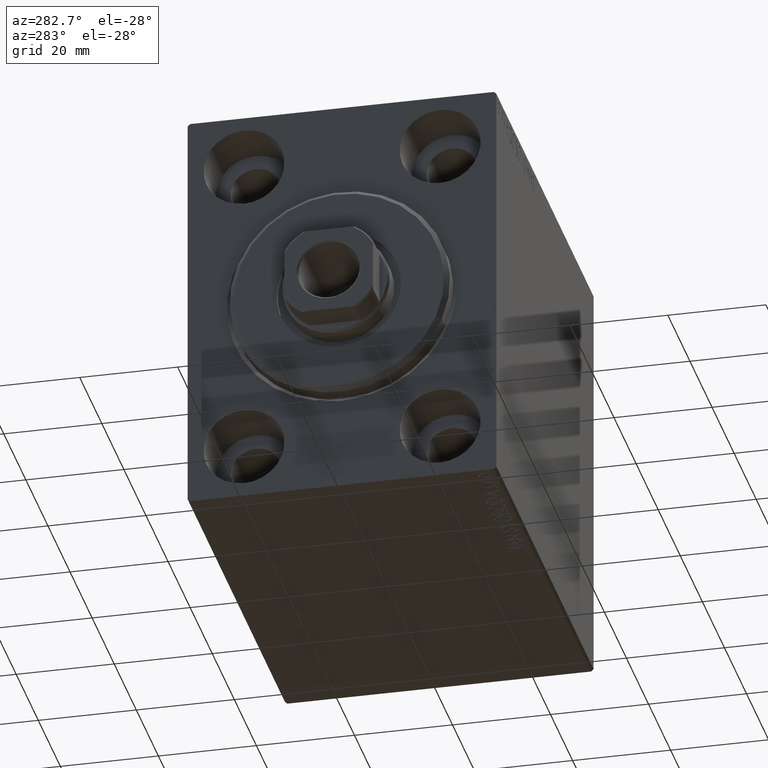
[diagram: clean part render]
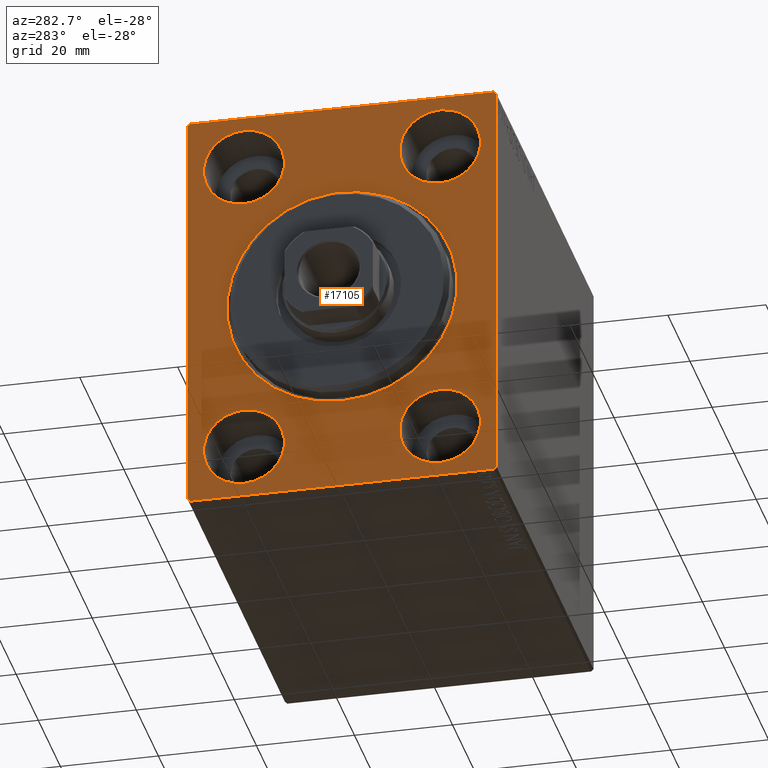
[diagram: same view with one face highlighted and labeled with its STEP entity id]
A machine part, auxiliary view. The second image highlights one B-rep face of the part: STEP entity #17105.
In plain terms, the highlighted planar face has unit normal (1, 0, 0).
Its self-contained STEP definition (entity closure, byte-faithful):
#176 = DIRECTION ( 'NONE',  ( 1.000000000000000000, 0.000000000000000000, 0.000000000000000000 ) ) ;
#1697 = DIRECTION ( 'NONE',  ( 0.000000000000000000, 0.000000000000000000, 1.000000000000000000 ) ) ;
#1768 = AXIS2_PLACEMENT_3D ( 'NONE', #10957, #38401, #24463 ) ;
#2037 = CARTESIAN_POINT ( 'NONE',  ( 0.000000000000000000, 20.00000000000000355, 31.50000000000000000 ) ) ;
#2145 = PLANE ( 'NONE',  #26042 ) ;
#2164 = DIRECTION ( 'NONE',  ( 0.000000000000000000, 0.000000000000000000, 1.000000000000000000 ) ) ;
#2196 = ORIENTED_EDGE ( 'NONE', *, *, #34296, .T. ) ;
#2448 = CARTESIAN_POINT ( 'NONE',  ( 0.000000000000000000, 31.00000000000002842, -42.50000000000000711 ) ) ;
#2903 = CARTESIAN_POINT ( 'NONE',  ( 0.000000000000000000, 19.99999999999999645, -31.49999999999999289 ) ) ;
#3077 = LINE ( 'NONE', #41533, #21910 ) ;
#3459 = DIRECTION ( 'NONE',  ( -0.000000000000000000, 0.7071067811865474617, -0.7071067811865474617 ) ) ;
#4215 = CIRCLE ( 'NONE', #41670, 23.49999999999998934 ) ;
#4461 = CARTESIAN_POINT ( 'NONE',  ( 0.000000000000000000, -19.99999999999999645, 39.74999999999999289 ) ) ;
#4537 = VERTEX_POINT ( 'NONE', #31828 ) ;
#5364 = VECTOR ( 'NONE', #32567, 1000.000000000000000 ) ;
#5828 = ORIENTED_EDGE ( 'NONE', *, *, #32714, .T. ) ;
#5896 = FACE_BOUND ( 'NONE', #42490, .T. ) ;
#5922 = VERTEX_POINT ( 'NONE', #27533 ) ;
#6210 = AXIS2_PLACEMENT_3D ( 'NONE', #35088, #8090, #1697 ) ;
#6236 = ORIENTED_EDGE ( 'NONE', *, *, #29501, .F. ) ;
#6342 = EDGE_LOOP ( 'NONE', ( #6937, #10735 ) ) ;
#6715 = AXIS2_PLACEMENT_3D ( 'NONE', #13859, #176, #37110 ) ;
#6741 = CARTESIAN_POINT ( 'NONE',  ( 0.000000000000000000, -19.99999999999999645, 23.25000000000000355 ) ) ;
#6937 = ORIENTED_EDGE ( 'NONE', *, *, #38226, .F. ) ;
#6977 = VECTOR ( 'NONE', #21931, 1000.000000000000000 ) ;
#7408 = CARTESIAN_POINT ( 'NONE',  ( 0.000000000000000000, 30.99999999999998579, 42.50000000000000711 ) ) ;
#7517 = AXIS2_PLACEMENT_3D ( 'NONE', #2903, #12615, #40266 ) ;
#7913 = CARTESIAN_POINT ( 'NONE',  ( 0.000000000000000000, 31.50000000000001421, -42.00000000000000711 ) ) ;
#8090 = DIRECTION ( 'NONE',  ( -1.000000000000000000, 0.000000000000000000, 0.000000000000000000 ) ) ;
#8432 = CARTESIAN_POINT ( 'NONE',  ( 0.000000000000000000, -31.00000000000000000, -42.50000000000000711 ) ) ;
#8633 = CARTESIAN_POINT ( 'NONE',  ( 0.000000000000000000, 31.50000000000000000, 41.99999999999999289 ) ) ;
#8881 = EDGE_CURVE ( 'NONE', #22785, #18701, #43501, .T. ) ;
#8993 = VECTOR ( 'NONE', #13251, 1000.000000000000000 ) ;
#9053 = EDGE_LOOP ( 'NONE', ( #10037, #2196 ) ) ;
#9224 = LINE ( 'NONE', #29358, #39330 ) ;
#9850 = FACE_BOUND ( 'NONE', #20030, .T. ) ;
#10007 = EDGE_CURVE ( 'NONE', #25694, #43077, #23151, .T. ) ;
#10037 = ORIENTED_EDGE ( 'NONE', *, *, #20992, .T. ) ;
#10735 = ORIENTED_EDGE ( 'NONE', *, *, #19412, .F. ) ;
#10957 = CARTESIAN_POINT ( 'NONE',  ( 0.000000000000000000, -20.00000000000000355, -31.49999999999999289 ) ) ;
#11095 = ORIENTED_EDGE ( 'NONE', *, *, #43399, .T. ) ;
#12313 = VECTOR ( 'NONE', #25174, 1000.000000000000000 ) ;
#12459 = EDGE_CURVE ( 'NONE', #22785, #32300, #43576, .T. ) ;
#12615 = DIRECTION ( 'NONE',  ( -1.000000000000000000, 0.000000000000000000, 0.000000000000000000 ) ) ;
#12892 = DIRECTION ( 'NONE',  ( 0.000000000000000000, 0.000000000000000000, -1.000000000000000000 ) ) ;
#13066 = VERTEX_POINT ( 'NONE', #2448 ) ;
#13251 = DIRECTION ( 'NONE',  ( 0.000000000000000000, -1.000000000000000000, -2.202823461557850341E-16 ) ) ;
#13859 = CARTESIAN_POINT ( 'NONE',  ( 0.000000000000000000, 0.000000000000000000, 0.000000000000000000 ) ) ;
#14313 = ORIENTED_EDGE ( 'NONE', *, *, #32911, .F. ) ;
#14462 = ORIENTED_EDGE ( 'NONE', *, *, #16456, .T. ) ;
#14842 = LINE ( 'NONE', #8432, #6977 ) ;
#14843 = EDGE_LOOP ( 'NONE', ( #14313, #34913 ) ) ;
#15220 = AXIS2_PLACEMENT_3D ( 'NONE', #40494, #43391, #42960 ) ;
#15248 = VERTEX_POINT ( 'NONE', #40962 ) ;
#16354 = VERTEX_POINT ( 'NONE', #22365 ) ;
#16456 = EDGE_CURVE ( 'NONE', #21402, #39217, #14842, .T. ) ;
#16587 = ORIENTED_EDGE ( 'NONE', *, *, #12459, .F. ) ;
#16717 = CIRCLE ( 'NONE', #42149, 8.249999999999992895 ) ;
#17105 = ADVANCED_FACE ( 'NONE', ( #39293, #19814, #5896, #9850, #32877, #29553 ), #2145, .F. ) ;
#17625 = CARTESIAN_POINT ( 'NONE',  ( 0.000000000000000000, 19.99999999999999645, -23.24999999999999289 ) ) ;
#18093 = CIRCLE ( 'NONE', #36497, 8.249999999999992895 ) ;
#18609 = DIRECTION ( 'NONE',  ( -1.000000000000000000, 0.000000000000000000, 0.000000000000000000 ) ) ;
#18701 = VERTEX_POINT ( 'NONE', #8633 ) ;
#18826 = DIRECTION ( 'NONE',  ( -1.000000000000000000, 0.000000000000000000, 0.000000000000000000 ) ) ;
#19031 = CIRCLE ( 'NONE', #36697, 8.250000000000000000 ) ;
#19343 = VECTOR ( 'NONE', #38262, 1000.000000000000000 ) ;
#19412 = EDGE_CURVE ( 'NONE', #4537, #40422, #19031, .T. ) ;
#19461 = CARTESIAN_POINT ( 'NONE',  ( 0.000000000000000000, 20.00000000000000355, 39.74999999999999289 ) ) ;
#19472 = CARTESIAN_POINT ( 'NONE',  ( 0.000000000000000000, 19.99999999999999645, -31.49999999999999289 ) ) ;
#19814 = FACE_BOUND ( 'NONE', #6342, .T. ) ;
#20030 = EDGE_LOOP ( 'NONE', ( #34345, #34790 ) ) ;
#20992 = EDGE_CURVE ( 'NONE', #28354, #5922, #4215, .T. ) ;
#21402 = VERTEX_POINT ( 'NONE', #21664 ) ;
#21664 = CARTESIAN_POINT ( 'NONE',  ( 0.000000000000000000, -31.00000000000000000, -42.50000000000000711 ) ) ;
#21812 = CARTESIAN_POINT ( 'NONE',  ( 0.000000000000000000, -20.00000000000000355, -39.74999999999999289 ) ) ;
#21910 = VECTOR ( 'NONE', #37353, 1000.000000000000000 ) ;
#21931 = DIRECTION ( 'NONE',  ( -0.000000000000000000, -0.7071067811865573427, 0.7071067811865378028 ) ) ;
#22365 = CARTESIAN_POINT ( 'NONE',  ( 0.000000000000000000, -31.50000000000000000, 41.99999999999999289 ) ) ;
#22462 = EDGE_CURVE ( 'NONE', #21402, #13066, #3077, .T. ) ;
#22579 = DIRECTION ( 'NONE',  ( -1.000000000000000000, 0.000000000000000000, 0.000000000000000000 ) ) ;
#22785 = VERTEX_POINT ( 'NONE', #7408 ) ;
#22929 = CARTESIAN_POINT ( 'NONE',  ( 0.000000000000000000, -19.99999999999999645, 31.50000000000000000 ) ) ;
#23151 = CIRCLE ( 'NONE', #6210, 8.249999999999992895 ) ;
#23363 = DIRECTION ( 'NONE',  ( -1.000000000000000000, 0.000000000000000000, 0.000000000000000000 ) ) ;
#23410 = CARTESIAN_POINT ( 'NONE',  ( 0.000000000000000000, 20.00000000000000355, 23.25000000000000355 ) ) ;
#23879 = ORIENTED_EDGE ( 'NONE', *, *, #8881, .T. ) ;
#24091 = CARTESIAN_POINT ( 'NONE',  ( 0.000000000000000000, -31.50000000000000000, -42.00000000000002132 ) ) ;
#24430 = EDGE_CURVE ( 'NONE', #39828, #36829, #30511, .T. ) ;
#24463 = DIRECTION ( 'NONE',  ( 0.000000000000000000, 0.000000000000000000, 1.000000000000000000 ) ) ;
#25174 = DIRECTION ( 'NONE',  ( 0.000000000000000000, -0.7071067811865378028, -0.7071067811865573427 ) ) ;
#25694 = VERTEX_POINT ( 'NONE', #23410 ) ;
#26042 = AXIS2_PLACEMENT_3D ( 'NONE', #43055, #39512, #43271 ) ;
#26106 = ORIENTED_EDGE ( 'NONE', *, *, #22462, .F. ) ;
#26469 = CIRCLE ( 'NONE', #1768, 8.250000000000000000 ) ;
#27060 = ORIENTED_EDGE ( 'NONE', *, *, #24430, .F. ) ;
#27281 = CIRCLE ( 'NONE', #7517, 8.250000000000000000 ) ;
#27428 = LINE ( 'NONE', #37612, #19343 ) ;
#27533 = CARTESIAN_POINT ( 'NONE',  ( 0.000000000000000000, 2.877919977996279137E-15, -23.49999999999998934 ) ) ;
#28354 = VERTEX_POINT ( 'NONE', #32933 ) ;
#29358 = CARTESIAN_POINT ( 'NONE',  ( 0.000000000000000000, -31.50000000000000000, 41.99999999999999289 ) ) ;
#29501 = EDGE_CURVE ( 'NONE', #15248, #18701, #27428, .T. ) ;
#29540 = CARTESIAN_POINT ( 'NONE',  ( 0.000000000000000000, -20.00000000000000355, -23.24999999999999289 ) ) ;
#29553 = FACE_OUTER_BOUND ( 'NONE', #38507, .T. ) ;
#29719 = CARTESIAN_POINT ( 'NONE',  ( 0.000000000000000000, 0.000000000000000000, 0.000000000000000000 ) ) ;
#29750 = CARTESIAN_POINT ( 'NONE',  ( 0.000000000000000000, -31.00000000000001421, 42.49999999999999289 ) ) ;
#29805 = ORIENTED_EDGE ( 'NONE', *, *, #40726, .F. ) ;
#30511 = CIRCLE ( 'NONE', #38290, 8.249999999999992895 ) ;
#30859 = CARTESIAN_POINT ( 'NONE',  ( 0.000000000000000000, 30.99999999999998579, 42.50000000000000711 ) ) ;
#31291 = ORIENTED_EDGE ( 'NONE', *, *, #41482, .F. ) ;
#31828 = CARTESIAN_POINT ( 'NONE',  ( 0.000000000000000000, 19.99999999999999645, -39.74999999999999289 ) ) ;
#31901 = CARTESIAN_POINT ( 'NONE',  ( 0.000000000000000000, -31.50000000000000000, 42.49999999999999289 ) ) ;
#32193 = CIRCLE ( 'NONE', #15220, 8.250000000000000000 ) ;
#32300 = VERTEX_POINT ( 'NONE', #29750 ) ;
#32567 = DIRECTION ( 'NONE',  ( 0.000000000000000000, 0.000000000000000000, -1.000000000000000000 ) ) ;
#32714 = EDGE_CURVE ( 'NONE', #15248, #13066, #38236, .T. ) ;
#32877 = FACE_BOUND ( 'NONE', #14843, .T. ) ;
#32911 = EDGE_CURVE ( 'NONE', #33107, #43619, #26469, .T. ) ;
#32933 = CARTESIAN_POINT ( 'NONE',  ( 0.000000000000000000, 0.000000000000000000, 23.49999999999998934 ) ) ;
#33107 = VERTEX_POINT ( 'NONE', #29540 ) ;
#34296 = EDGE_CURVE ( 'NONE', #5922, #28354, #42046, .T. ) ;
#34345 = ORIENTED_EDGE ( 'NONE', *, *, #38171, .F. ) ;
#34763 = DIRECTION ( 'NONE',  ( 0.000000000000000000, 0.000000000000000000, 1.000000000000000000 ) ) ;
#34790 = ORIENTED_EDGE ( 'NONE', *, *, #10007, .F. ) ;
#34913 = ORIENTED_EDGE ( 'NONE', *, *, #40922, .F. ) ;
#35088 = CARTESIAN_POINT ( 'NONE',  ( 0.000000000000000000, 20.00000000000000355, 31.50000000000000000 ) ) ;
#35436 = LINE ( 'NONE', #31901, #5364 ) ;
#35638 = CARTESIAN_POINT ( 'NONE',  ( 0.000000000000000000, -19.99999999999999645, 31.50000000000000000 ) ) ;
#36073 = DIRECTION ( 'NONE',  ( 0.000000000000000000, 0.000000000000000000, 1.000000000000000000 ) ) ;
#36276 = CARTESIAN_POINT ( 'NONE',  ( 0.000000000000000000, 31.50000000000000000, 42.50000000000000711 ) ) ;
#36497 = AXIS2_PLACEMENT_3D ( 'NONE', #22929, #23363, #2164 ) ;
#36697 = AXIS2_PLACEMENT_3D ( 'NONE', #19472, #22579, #36073 ) ;
#36829 = VERTEX_POINT ( 'NONE', #6741 ) ;
#37110 = DIRECTION ( 'NONE',  ( 0.000000000000000000, 0.000000000000000000, -1.000000000000000000 ) ) ;
#37353 = DIRECTION ( 'NONE',  ( 0.000000000000000000, 1.000000000000000000, 0.000000000000000000 ) ) ;
#37612 = CARTESIAN_POINT ( 'NONE',  ( 0.000000000000000000, 31.50000000000001421, -42.50000000000000711 ) ) ;
#38171 = EDGE_CURVE ( 'NONE', #43077, #25694, #16717, .T. ) ;
#38226 = EDGE_CURVE ( 'NONE', #40422, #4537, #27281, .T. ) ;
#38236 = LINE ( 'NONE', #7913, #12313 ) ;
#38262 = DIRECTION ( 'NONE',  ( 0.000000000000000000, -1.632680918566406300E-16, 1.000000000000000000 ) ) ;
#38290 = AXIS2_PLACEMENT_3D ( 'NONE', #35638, #18609, #34763 ) ;
#38401 = DIRECTION ( 'NONE',  ( -1.000000000000000000, 0.000000000000000000, 0.000000000000000000 ) ) ;
#38507 = EDGE_LOOP ( 'NONE', ( #29805, #11095, #16587, #23879, #6236, #5828, #26106, #14462 ) ) ;
#38660 = VECTOR ( 'NONE', #3459, 1000.000000000000114 ) ;
#39181 = DIRECTION ( 'NONE',  ( 0.000000000000000000, 0.000000000000000000, 1.000000000000000000 ) ) ;
#39217 = VERTEX_POINT ( 'NONE', #24091 ) ;
#39293 = FACE_BOUND ( 'NONE', #9053, .T. ) ;
#39330 = VECTOR ( 'NONE', #42638, 1000.000000000000000 ) ;
#39512 = DIRECTION ( 'NONE',  ( 1.000000000000000000, 0.000000000000000000, 0.000000000000000000 ) ) ;
#39828 = VERTEX_POINT ( 'NONE', #4461 ) ;
#40266 = DIRECTION ( 'NONE',  ( 0.000000000000000000, 0.000000000000000000, 1.000000000000000000 ) ) ;
#40422 = VERTEX_POINT ( 'NONE', #17625 ) ;
#40494 = CARTESIAN_POINT ( 'NONE',  ( 0.000000000000000000, -20.00000000000000355, -31.49999999999999289 ) ) ;
#40726 = EDGE_CURVE ( 'NONE', #16354, #39217, #35436, .T. ) ;
#40922 = EDGE_CURVE ( 'NONE', #43619, #33107, #32193, .T. ) ;
#40962 = CARTESIAN_POINT ( 'NONE',  ( 0.000000000000000000, 31.50000000000001421, -42.00000000000000711 ) ) ;
#41482 = EDGE_CURVE ( 'NONE', #36829, #39828, #18093, .T. ) ;
#41533 = CARTESIAN_POINT ( 'NONE',  ( 0.000000000000000000, -31.50000000000000000, -42.50000000000000711 ) ) ;
#41670 = AXIS2_PLACEMENT_3D ( 'NONE', #29719, #43222, #12892 ) ;
#42046 = CIRCLE ( 'NONE', #6715, 23.49999999999998934 ) ;
#42149 = AXIS2_PLACEMENT_3D ( 'NONE', #2037, #18826, #39181 ) ;
#42490 = EDGE_LOOP ( 'NONE', ( #27060, #31291 ) ) ;
#42638 = DIRECTION ( 'NONE',  ( -0.000000000000000000, 0.7071067811865378028, 0.7071067811865573427 ) ) ;
#42960 = DIRECTION ( 'NONE',  ( 0.000000000000000000, 0.000000000000000000, 1.000000000000000000 ) ) ;
#43055 = CARTESIAN_POINT ( 'NONE',  ( 0.000000000000000000, 0.000000000000000000, 0.000000000000000000 ) ) ;
#43077 = VERTEX_POINT ( 'NONE', #19461 ) ;
#43222 = DIRECTION ( 'NONE',  ( 1.000000000000000000, 0.000000000000000000, 0.000000000000000000 ) ) ;
#43271 = DIRECTION ( 'NONE',  ( 0.000000000000000000, 0.000000000000000000, -1.000000000000000000 ) ) ;
#43391 = DIRECTION ( 'NONE',  ( -1.000000000000000000, 0.000000000000000000, 0.000000000000000000 ) ) ;
#43399 = EDGE_CURVE ( 'NONE', #16354, #32300, #9224, .T. ) ;
#43501 = LINE ( 'NONE', #30859, #38660 ) ;
#43576 = LINE ( 'NONE', #36276, #8993 ) ;
#43619 = VERTEX_POINT ( 'NONE', #21812 ) ;